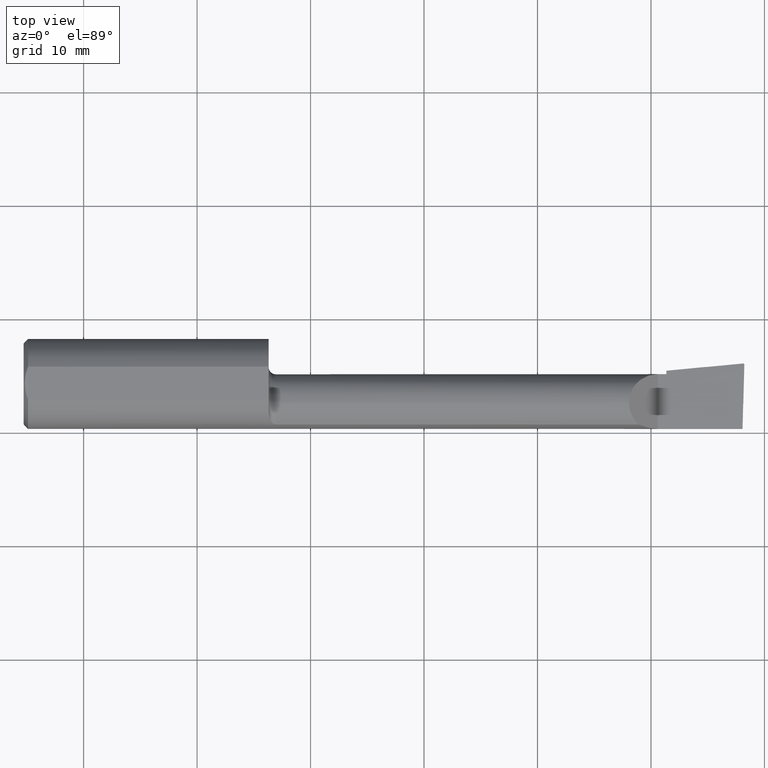
[diagram: clean part render]
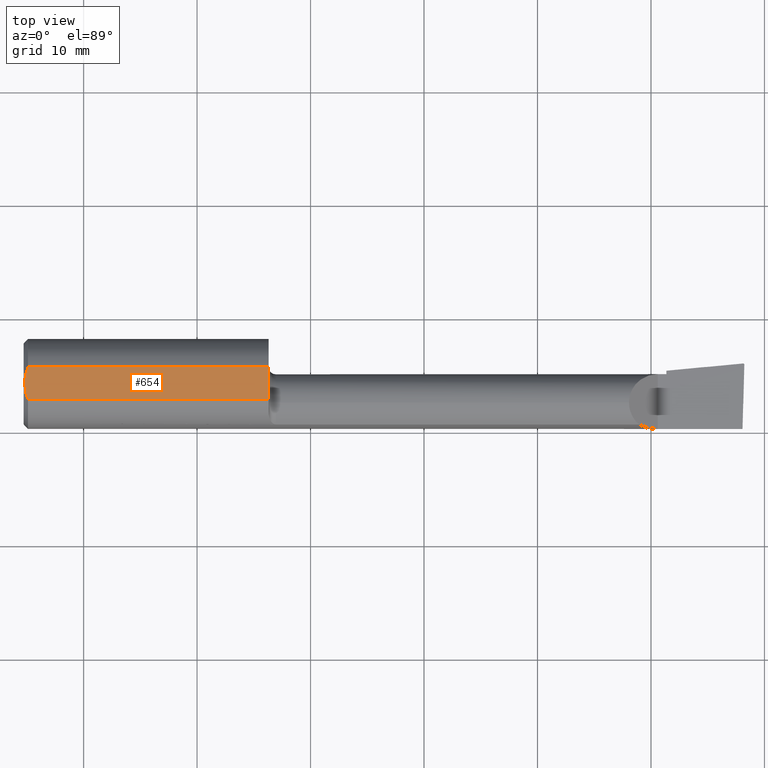
[diagram: same view with one face highlighted and labeled with its STEP entity id]
A machine part, top view. The second image highlights one B-rep face of the part: STEP entity #654.
In plain terms, the highlighted planar face has unit normal (0, 0, -1).
Its self-contained STEP definition (entity closure, byte-faithful):
#13 = ORIENTED_EDGE ( 'NONE', *, *, #746, .F. ) ;
#37 = CARTESIAN_POINT ( 'NONE',  ( 0.1015999999999284698, -0.2510152873235154125, 3.685539999999999150 ) ) ;
#51 = CARTESIAN_POINT ( 'NONE',  ( 0.1015999999999948056, 3.500044931498621813E-16, 3.685539999999999150 ) ) ;
#73 = CARTESIAN_POINT ( 'NONE',  ( 63.50000000000000000, 1.462034237629201039, 3.685539999999999150 ) ) ;
#86 = VECTOR ( 'NONE', #598, 1000.000000000000000 ) ;
#103 = FACE_OUTER_BOUND ( 'NONE', #1232, .T. ) ;
#111 = CARTESIAN_POINT ( 'NONE',  ( 21.59000000000000341, 1.462034237629201039, 3.685539999999999150 ) ) ;
#115 = PLANE ( 'NONE',  #633 ) ;
#144 = VERTEX_POINT ( 'NONE', #111 ) ;
#147 = B_SPLINE_CURVE_WITH_KNOTS ( 'NONE', 3,
 ( #1011, #1209, #352, #645, #174, #1141 ),
 .UNSPECIFIED., .F., .F.,
 ( 4, 2, 4 ),
 ( 0.002945485300212928158, 0.003688377603187957543, 0.004431269906162986494 ),
 .UNSPECIFIED. ) ;
#174 = CARTESIAN_POINT ( 'NONE',  ( 0.1015999999999299547, 0.2511217935535139389, 3.685539999999999150 ) ) ;
#349 = ORIENTED_EDGE ( 'NONE', *, *, #1188, .F. ) ;
#352 = CARTESIAN_POINT ( 'NONE',  ( 0.2235145214959431414, 0.9851334071146859994, 3.685539999999999594 ) ) ;
#394 = CARTESIAN_POINT ( 'NONE',  ( 0.000000000000000000, 2.540000000000000480, 3.685539999999999150 ) ) ;
#395 = VERTEX_POINT ( 'NONE', #813 ) ;
#404 = B_SPLINE_CURVE_WITH_KNOTS ( 'NONE', 3,
 ( #51, #37, #908, #812, #714, #1098 ),
 .UNSPECIFIED., .F., .F.,
 ( 4, 2, 4 ),
 ( 0.004431269906162986494, 0.005173847132308764286, 0.005916424358454542079 ),
 .UNSPECIFIED. ) ;
#420 = DIRECTION ( 'NONE',  ( -1.000000000000000000, -0.000000000000000000, -0.000000000000000000 ) ) ;
#442 = EDGE_CURVE ( 'NONE', #933, #395, #147, .T. ) ;
#484 = ORIENTED_EDGE ( 'NONE', *, *, #921, .T. ) ;
#497 = CARTESIAN_POINT ( 'NONE',  ( 21.59000000000000341, 2.540000000000000480, 3.685539999999999150 ) ) ;
#519 = DIRECTION ( 'NONE',  ( -1.000000000000000000, 0.000000000000000000, 0.000000000000000000 ) ) ;
#525 = DIRECTION ( 'NONE',  ( 1.000000000000000000, 0.000000000000000000, 0.000000000000000000 ) ) ;
#598 = DIRECTION ( 'NONE',  ( 0.000000000000000000, -1.000000000000000000, 0.000000000000000000 ) ) ;
#633 = AXIS2_PLACEMENT_3D ( 'NONE', #394, #973, #519 ) ;
#644 = CARTESIAN_POINT ( 'NONE',  ( 0.3809999999999924558, -1.462034237629201039, 3.685539999999999150 ) ) ;
#645 = CARTESIAN_POINT ( 'NONE',  ( 0.1274433735584585836, 0.4981409861471362555, 3.685539999999998706 ) ) ;
#654 = ADVANCED_FACE ( 'NONE', ( #103 ), #115, .F. ) ;
#689 = LINE ( 'NONE', #497, #86 ) ;
#714 = CARTESIAN_POINT ( 'NONE',  ( 0.2946835978831989777, -1.227949873118057589, 3.685539999999999150 ) ) ;
#746 = EDGE_CURVE ( 'NONE', #144, #961, #689, .T. ) ;
#812 = CARTESIAN_POINT ( 'NONE',  ( 0.2247358976179796297, -0.9898225455501730163, 3.685539999999998706 ) ) ;
#813 = CARTESIAN_POINT ( 'NONE',  ( 0.1015999999999948056, 3.500044931498621813E-16, 3.685539999999999150 ) ) ;
#854 = EDGE_CURVE ( 'NONE', #933, #144, #1027, .T. ) ;
#858 = VERTEX_POINT ( 'NONE', #644 ) ;
#878 = ORIENTED_EDGE ( 'NONE', *, *, #442, .T. ) ;
#879 = CARTESIAN_POINT ( 'NONE',  ( 21.59000000000000341, -1.462034237629201483, 3.685539999999999150 ) ) ;
#893 = VECTOR ( 'NONE', #525, 1000.000000000000000 ) ;
#908 = CARTESIAN_POINT ( 'NONE',  ( 0.1280887710546985137, -0.5028858476047466386, 3.685539999999999594 ) ) ;
#921 = EDGE_CURVE ( 'NONE', #395, #858, #404, .T. ) ;
#933 = VERTEX_POINT ( 'NONE', #964 ) ;
#961 = VERTEX_POINT ( 'NONE', #879 ) ;
#964 = CARTESIAN_POINT ( 'NONE',  ( 0.3809999999999924558, 1.462034237629201039, 3.685539999999999150 ) ) ;
#973 = DIRECTION ( 'NONE',  ( -0.000000000000000000, 0.000000000000000000, -1.000000000000000000 ) ) ;
#1011 = CARTESIAN_POINT ( 'NONE',  ( 0.3809999999999924558, 1.462034237629201039, 3.685539999999999150 ) ) ;
#1027 = LINE ( 'NONE', #73, #893 ) ;
#1067 = CARTESIAN_POINT ( 'NONE',  ( 63.50000000000000000, -1.462034237629201039, 3.685539999999999150 ) ) ;
#1096 = LINE ( 'NONE', #1067, #1107 ) ;
#1098 = CARTESIAN_POINT ( 'NONE',  ( 0.3809999999999924558, -1.462034237629201039, 3.685539999999999150 ) ) ;
#1107 = VECTOR ( 'NONE', #420, 1000.000000000000000 ) ;
#1141 = CARTESIAN_POINT ( 'NONE',  ( 0.1015999999999948056, 3.500044931498621813E-16, 3.685539999999999150 ) ) ;
#1188 = EDGE_CURVE ( 'NONE', #961, #858, #1096, .T. ) ;
#1209 = CARTESIAN_POINT ( 'NONE',  ( 0.2941137992624218711, 1.226404617004863917, 3.685539999999999150 ) ) ;
#1219 = ORIENTED_EDGE ( 'NONE', *, *, #854, .F. ) ;
#1232 = EDGE_LOOP ( 'NONE', ( #13, #1219, #878, #484, #349 ) ) ;